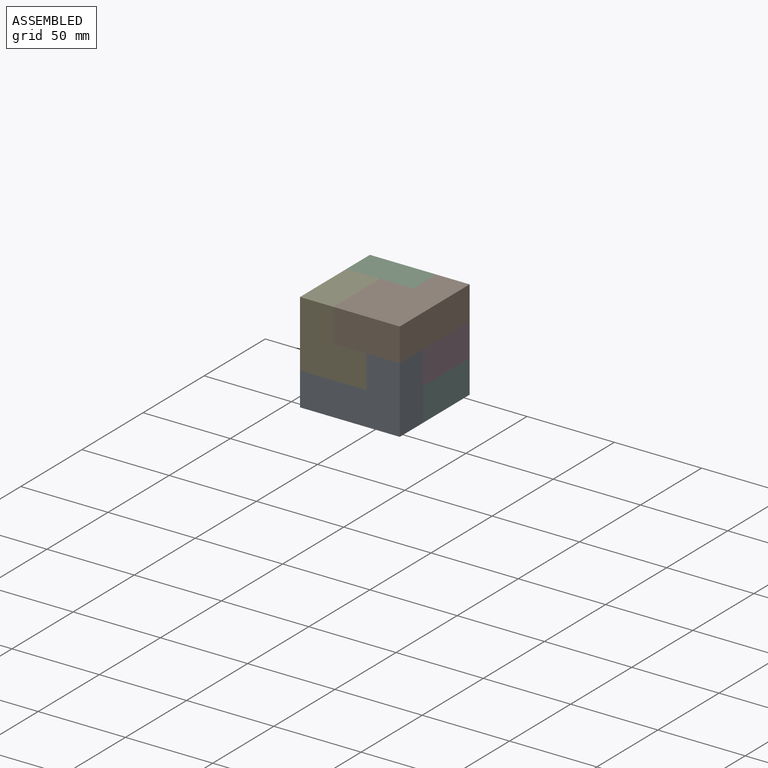
[diagram: assembled view]
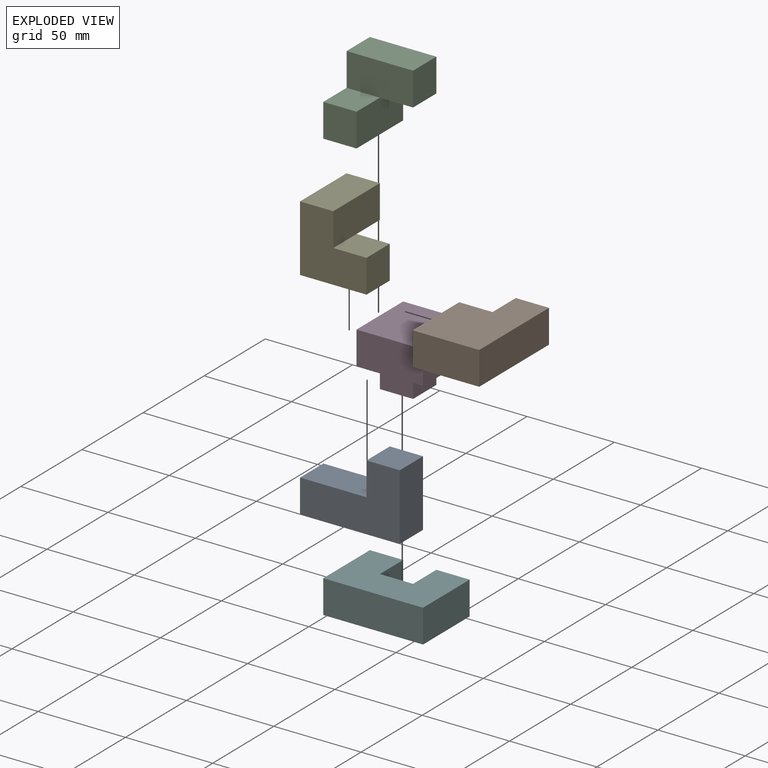
[diagram: exploded view]
GUIDED TOUR — MATED ASSEMBLY (Onshape document 09b985753b703ec9031e6366, AutoMate assembly 09b985753b703ec9031e6366_a07d5b4683fd4e2ea0722e50_ac86acaffb4ff11d9ad08a5e_default)

This assembly has 6 components, labeled P0..P5 below (a component is one placed occurrence of a part; the same part can appear more than once), held together by 18 mates. A mate is a constraint between two components; its type names the relative motion it leaves free:
  PLANAR — leaves sliding in the plane through the listed point (normal = the listed direction) and rotation about that normal free.
Axis/direction vectors are unit vectors and 'through' points are millimeter coordinates, both in the assembly's world frame.

MATES
  1. PLANAR "Planar 21": P3 <-> P1, direction (0.000, 1.000, 0.000) through (34.92, 0.00, 22.23) mm
  2. PLANAR "Planar 18": P4 <-> P0, direction (0.000, -1.000, 0.000) through (15.88, -57.15, 34.93) mm
  3. PLANAR "Planar 6": P5 <-> P3, direction (0.000, 0.000, 1.000) through (57.15, -19.05, 19.05) mm
  4. PLANAR "Planar 16": P4 <-> P2, direction (-1.000, 0.000, 0.000) through (0.00, -41.27, 41.28) mm
  5. PLANAR "Planar 19": P1 <-> P4, direction (0.000, 0.000, 1.000) through (40.00, -32.38, 57.15) mm
  6. PLANAR "Planar 15": P2 <-> P3, direction (0.000, 0.000, 1.000) through (9.53, -28.58, 38.10) mm
  7. PLANAR "Planar 1": P0 <-> P5, direction (1.000, 0.000, 0.000) through (57.15, -47.62, 19.05) mm
  8. PLANAR "Planar 4": P0 <-> P5, direction (0.000, 1.000, 0.000) through (0.00, -38.10, 9.53) mm
  9. PLANAR "Planar 7": P3 <-> P5, direction (0.000, 0.000, -1.000) through (41.27, -22.22, 19.05) mm
  10. PLANAR "Planar 9": P3 <-> P5, direction (1.000, 0.000, 0.000) through (57.15, -19.05, 28.58) mm
  11. PLANAR "Planar 10": P2 <-> P5, direction (-1.000, 0.000, 0.000) through (0.00, -15.88, 34.92) mm
  12. PLANAR "Planar 12": P3 <-> P2, direction (0.000, -1.000, 0.000) through (19.05, -38.10, 28.58) mm
  13. PLANAR "Planar 17": P2 <-> P4, direction (0.000, 0.000, 1.000) through (19.05, -9.53, 57.15) mm
  14. PLANAR "Planar 11": P2 <-> P5, direction (0.000, 1.000, 0.000) through (0.00, 0.00, 38.10) mm
  15. PLANAR "Planar 20": P1 <-> P0, direction (1.000, 0.000, 0.000) through (57.15, -28.57, 47.63) mm
  16. PLANAR "Planar 14": P2 <-> P3, direction (0.000, -1.000, 0.000) through (9.53, -38.10, 28.57) mm
  17. PLANAR "Planar 3": P5 <-> P0, direction (0.000, 0.000, 1.000) through (28.57, -20.96, 19.05) mm
  18. PLANAR "Planar 5": P3 <-> P0, direction (0.000, -1.000, 0.000) through (38.10, -38.10, 28.58) mm

ASSEMBLY ORDER
  1. P3 — the base component [order heuristic]
  2. P0 — core [order heuristic]
  3. P5 — core [order heuristic]
  4. P4 — core [order heuristic]
  5. P2 — core [order heuristic]
  6. P1 [order verified]
Order-tag legend:
  [order verified] — this step's position reverses a verified removal order: the component was checked to insert without passing through the ones already placed.
  [order heuristic] — the first 5 components form the assembly's core: parts whose collision-free extraction could not be verified, listed in mate-graph order.

Of the 6 components, 6 carry the full construction recipe — the FeatureScript program that regenerates the part's solid from scratch; the rest are supplied as boundary geometry only.
Each toured component is shown spotlighted twice — in the assembled view, then in the exploded view, where a leader line traces a displaced component back to its assembled socket (saturated green if recipe-attached, orange if geometry-only; every other component desaturated gray) — followed by its recipe or geometry summary and the mates that hold it.
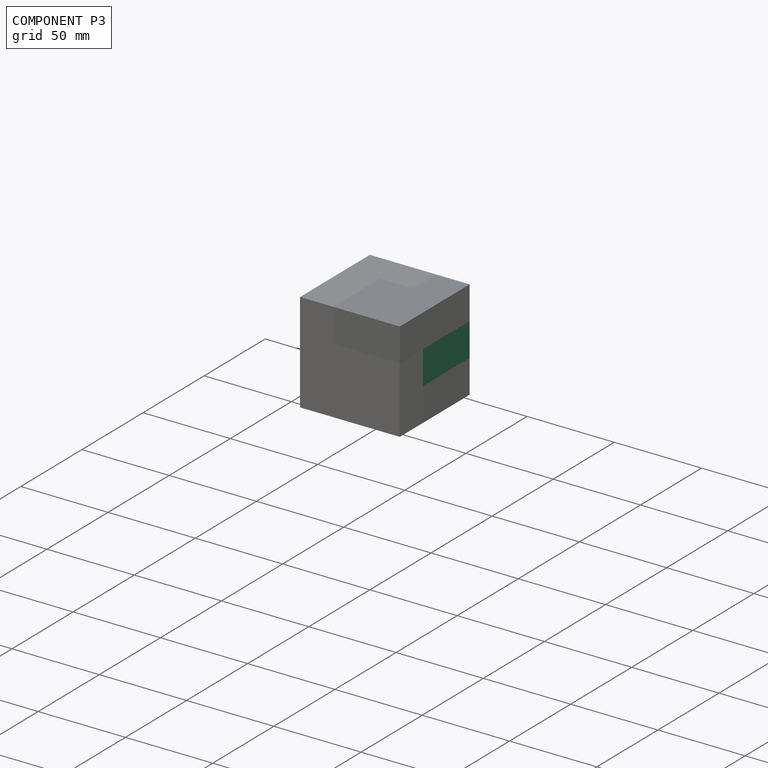
[diagram: component P3 — assembled]
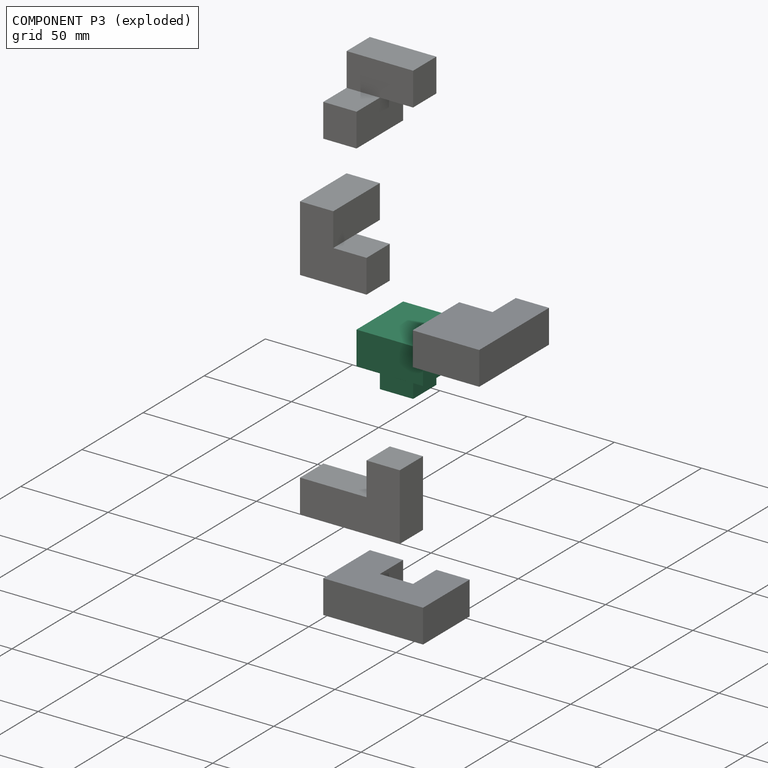
[diagram: component P3 — exploded]
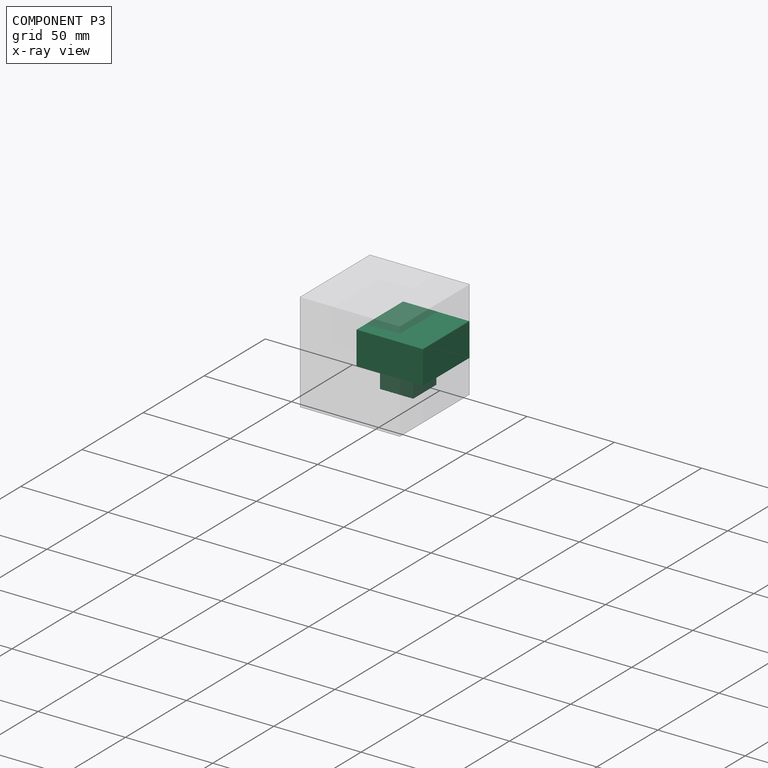
[diagram: component P3 — x-ray view]
COMPONENT P3 — recipe-attached (CADFS 00860689, mesh-verified: the recipe's output STEP matches this component's geometry to below the mesh-comparison resolution (tessellation chordal tolerance ~0.099 mm)).
Held by: PLANAR mate "Planar 21" to P1; PLANAR mate "Planar 6" to P5; PLANAR mate "Planar 15" to P2; PLANAR mate "Planar 7" to P5; PLANAR mate "Planar 9" to P5; PLANAR mate "Planar 12" to P2; PLANAR mate "Planar 14" to P2; PLANAR mate "Planar 5" to P0.
Construction recipe (FeatureScript — the CAD program that rebuilds this solid; sketch coordinates are in the units given by the * unit suffixes, e.g. mm):

FeatureScript 1511;
import(path : "onshape/std/geometry.fs", version : "1511.0");
import(path : "onshape/std/common.fs", version : "1511.0");
const mm = millimeter;
const VERTEX = EntityType.VERTEX;
const EDGE = EntityType.EDGE;
const FACE = EntityType.FACE;
const BODY = EntityType.BODY;
function v(x, y){return vector(x, y);}
function OD(order){return orderDisambiguation(order);}
function OSD(set){return originalSetDisambiguation(set);}
function TD(topology){return topologyDisambiguation(topology);}
function TDD(query){return trueDependencyDisambiguation(query);}
function sQuery(a, b, c) {return sketchEntityQuery(a, b, c);}

annotation { "Feature Type Name" : "Feature", "Feature Type Description" : "" }
export const myFeature = defineFeature(function(context is Context, id is Id, definition is map)
    precondition{}
    {
        {
            var Q0;
            Q0=qCreatedBy(makeId("Top.planeOp"),FACE);
            var sketch = newSketch(context, id + "F0", { "sketchPlane" : qUnion([Q0])});
            skLineSegment(sketch, "E0", {"start": v(0, 0) * mm, "end": v(0, 38.1) * mm});
            skLineSegment(sketch, "E1", {"start": v(0, 38.1) * mm, "end": v(38.1, 38.1) * mm});
            skLineSegment(sketch, "E2", {"start": v(38.1, 38.1) * mm, "end": v(38.1, 0) * mm});
            skLineSegment(sketch, "E3", {"start": v(38.1, 0) * mm, "end": v(0, 0) * mm});
            skSolve(sketch);
        }
        {
            var Q0;
            Q0 = qSketchRegion(id + "F0", true);
            extrude(context, id + "F1", {"entities" : qUnion([Q0]), "depth" : 19.05 * mm, "offsetDistance" : 25.4 * mm});
        }
        {
            var Q0;
            Q0=makeQuery(id+"F1.opExtrude","CAP_FACE",FACE,{"disambiguationData":[OSD([sQuery(id+"F0.wireOp",EDGE,"E0"),sQuery(id+"F0.wireOp",EDGE,"E1"),sQuery(id+"F0.wireOp",EDGE,"E2"),sQuery(id+"F0.wireOp",EDGE,"E3")])],"isStart":false});
            var sketch = newSketch(context, id + "F2", { "sketchPlane" : qUnion([Q0])});
            skLineSegment(sketch, "E4", {"start": v(0, 38.1) * mm, "end": v(19.05, 38.1) * mm});
            skLineSegment(sketch, "E5", {"start": v(19.05, 38.1) * mm, "end": v(19.05, 19.05) * mm});
            skLineSegment(sketch, "E6", {"start": v(19.05, 19.05) * mm, "end": v(0, 19.05) * mm});
            skLineSegment(sketch, "E7", {"start": v(0, 19.05) * mm, "end": v(0, 38.1) * mm});
            skSolve(sketch);
        }
        {
            var Q0;
            Q0=makeQuery(id+"F2.imprint","IMPRINT",FACE,{"disambiguationData":[TD([[makeQuery(id+"F2.imprint","IMPRINT",EDGE,{"derivedFrom":sQuery(id+"F2.wireOp",EDGE,"E4")}),-1.0]])]});
            extrude(context, id + "F3", {"entities" : qUnion([Q0]), "operationType" : NewBodyOperationType.ADD, "depth" : 19.05 * mm, "offsetDistance" : 25.4 * mm});
        }
    });
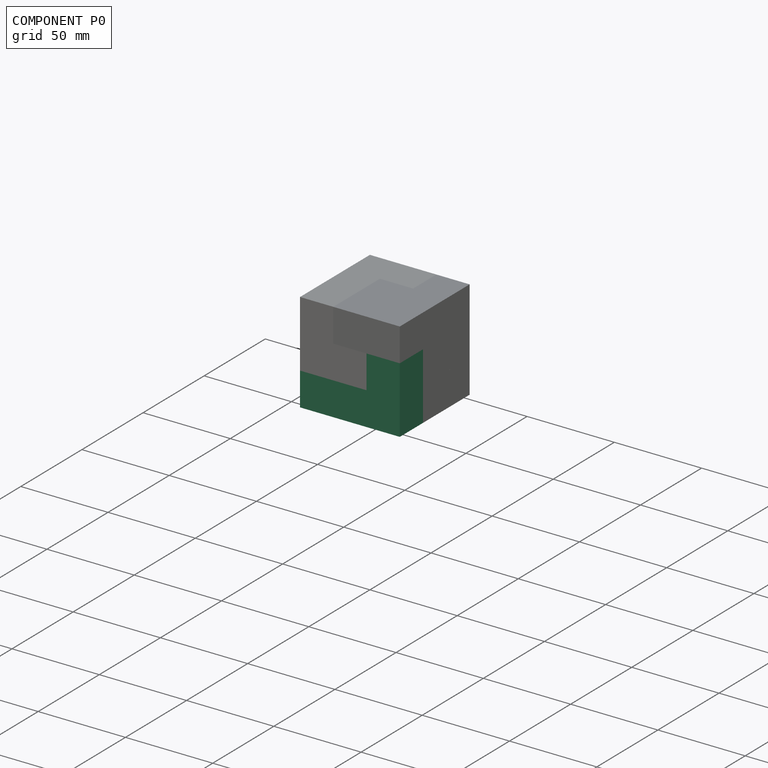
[diagram: component P0 — assembled]
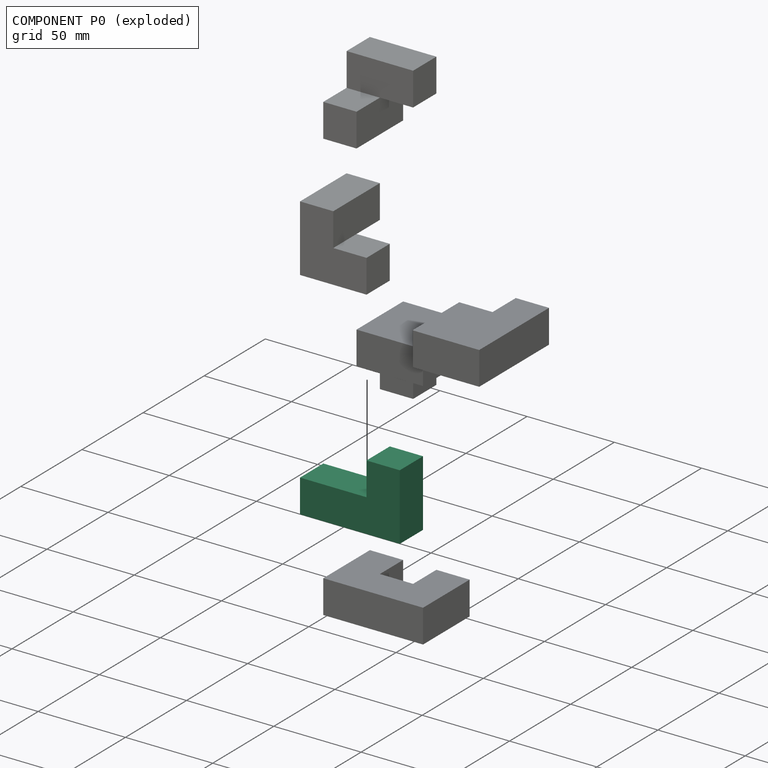
[diagram: component P0 — exploded]
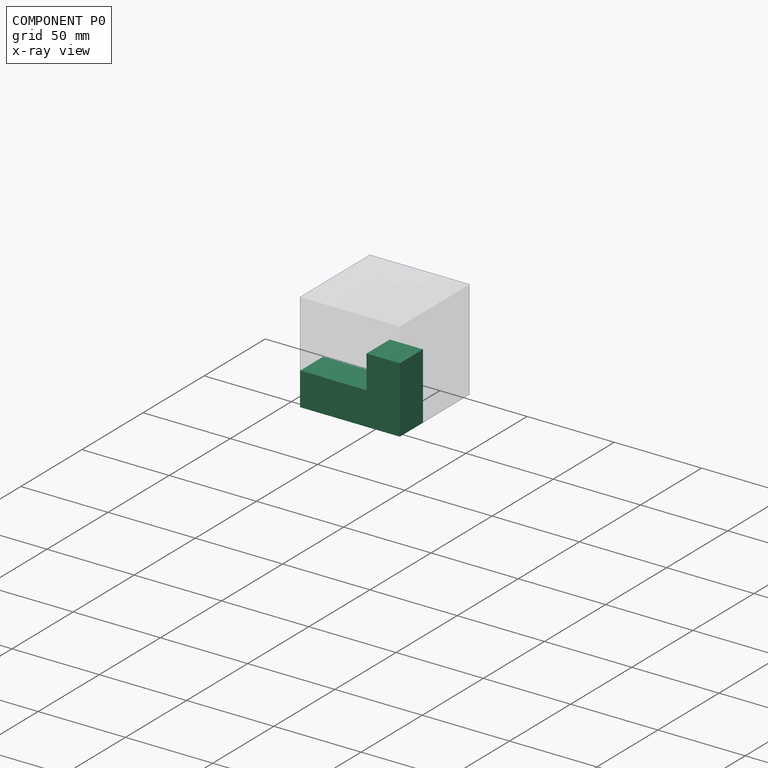
[diagram: component P0 — x-ray view]
COMPONENT P0 — recipe-attached (CADFS 00860687, mesh-verified: the recipe's output STEP matches this component's geometry to below the mesh-comparison resolution (tessellation chordal tolerance ~0.107 mm)).
Held by: PLANAR mate "Planar 18" to P4; PLANAR mate "Planar 1" to P5; PLANAR mate "Planar 4" to P5; PLANAR mate "Planar 20" to P1; PLANAR mate "Planar 3" to P5; PLANAR mate "Planar 5" to P3.
Construction recipe (FeatureScript — the CAD program that rebuilds this solid; sketch coordinates are in the units given by the * unit suffixes, e.g. mm):

FeatureScript 1511;
import(path : "onshape/std/geometry.fs", version : "1511.0");
import(path : "onshape/std/common.fs", version : "1511.0");
const mm = millimeter;
const VERTEX = EntityType.VERTEX;
const EDGE = EntityType.EDGE;
const FACE = EntityType.FACE;
const BODY = EntityType.BODY;
function v(x, y){return vector(x, y);}
function OD(order){return orderDisambiguation(order);}
function OSD(set){return originalSetDisambiguation(set);}
function TD(topology){return topologyDisambiguation(topology);}
function TDD(query){return trueDependencyDisambiguation(query);}
function sQuery(a, b, c) {return sketchEntityQuery(a, b, c);}

annotation { "Feature Type Name" : "Feature", "Feature Type Description" : "" }
export const myFeature = defineFeature(function(context is Context, id is Id, definition is map)
    precondition{}
    {
        {
            var Q0;
            Q0=qCreatedBy(makeId("Top.planeOp"),FACE);
            var sketch = newSketch(context, id + "F0", { "sketchPlane" : qUnion([Q0])});
            skLineSegment(sketch, "E0", {"start": v(0, 0) * mm, "end": v(0, 38.1) * mm});
            skLineSegment(sketch, "E1", {"start": v(0, 38.1) * mm, "end": v(19.05, 38.1) * mm});
            skLineSegment(sketch, "E2", {"start": v(19.05, 38.1) * mm, "end": v(19.05, 19.05) * mm});
            skLineSegment(sketch, "E3", {"start": v(19.05, 19.05) * mm, "end": v(57.15, 19.05) * mm});
            skLineSegment(sketch, "E4", {"start": v(57.15, 19.05) * mm, "end": v(57.15, 0) * mm});
            skLineSegment(sketch, "E5", {"start": v(0, 0) * mm, "end": v(57.15, 0) * mm});
            skSolve(sketch);
        }
        {
            var Q0;
            Q0 = qSketchRegion(id + "F0", true);
            extrude(context, id + "F1", {"entities" : qUnion([Q0]), "depth" : 19.05 * mm, "offsetDistance" : 25.4 * mm});
        }
    });
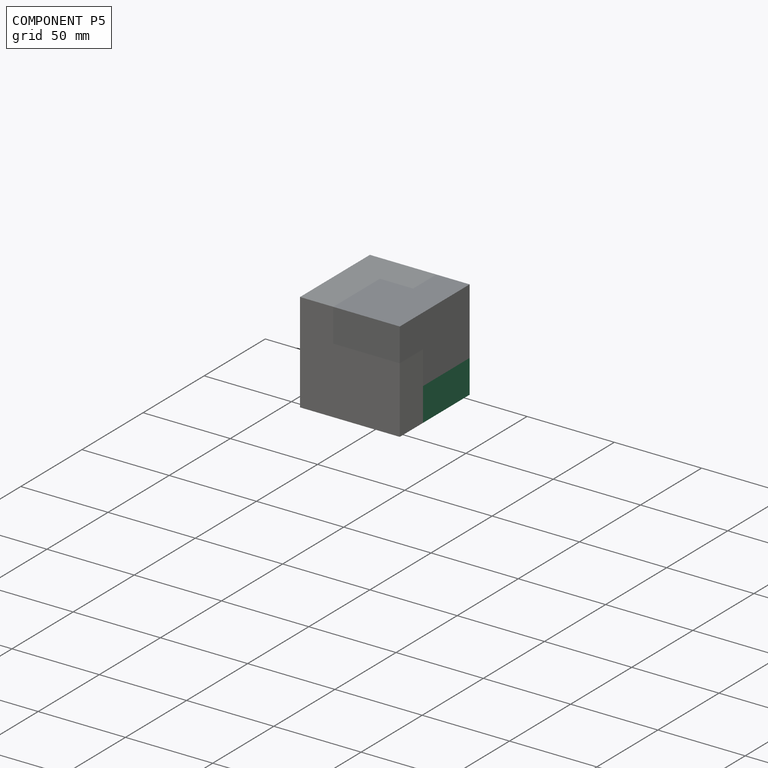
[diagram: component P5 — assembled]
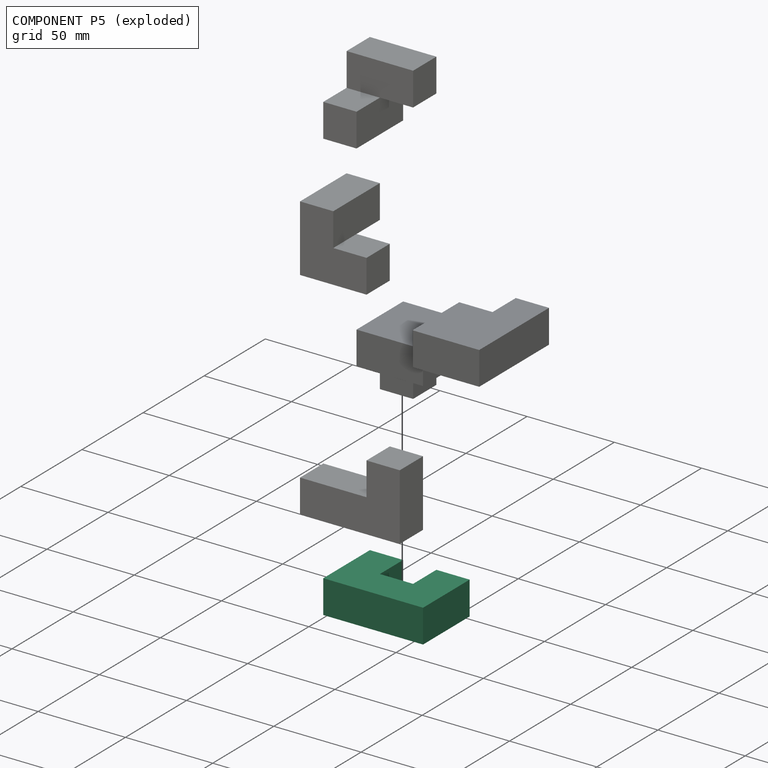
[diagram: component P5 — exploded]
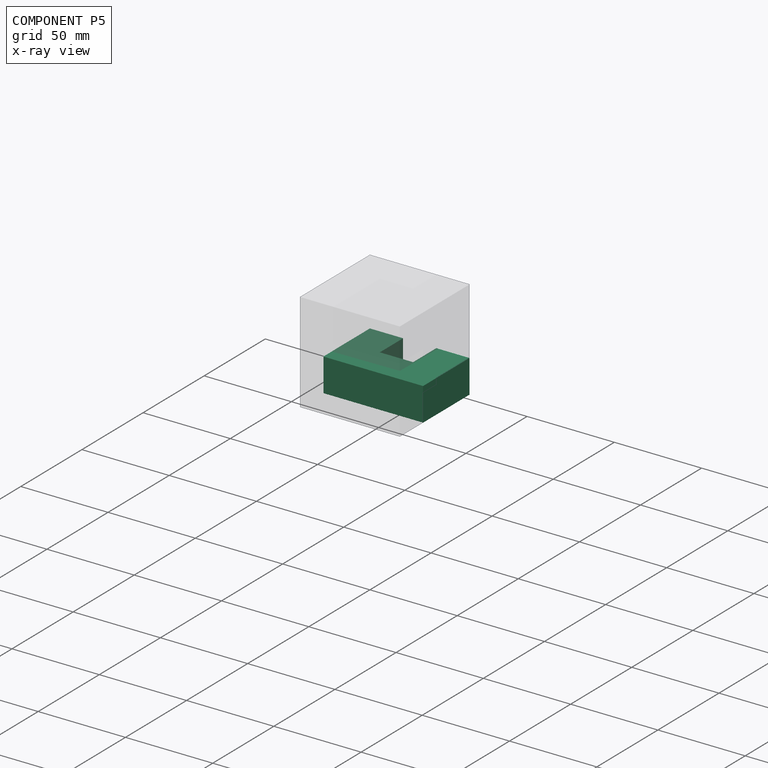
[diagram: component P5 — x-ray view]
COMPONENT P5 — recipe-attached (CADFS 00860688, mesh-verified: the recipe's output STEP matches this component's geometry to below the mesh-comparison resolution (tessellation chordal tolerance ~0.107 mm)).
Held by: PLANAR mate "Planar 6" to P3; PLANAR mate "Planar 1" to P0; PLANAR mate "Planar 4" to P0; PLANAR mate "Planar 7" to P3; PLANAR mate "Planar 9" to P3; PLANAR mate "Planar 10" to P2; PLANAR mate "Planar 11" to P2; PLANAR mate "Planar 3" to P0.
Construction recipe (FeatureScript — the CAD program that rebuilds this solid; sketch coordinates are in the units given by the * unit suffixes, e.g. mm):

FeatureScript 1511;
import(path : "onshape/std/geometry.fs", version : "1511.0");
import(path : "onshape/std/common.fs", version : "1511.0");
const mm = millimeter;
const VERTEX = EntityType.VERTEX;
const EDGE = EntityType.EDGE;
const FACE = EntityType.FACE;
const BODY = EntityType.BODY;
function v(x, y){return vector(x, y);}
function OD(order){return orderDisambiguation(order);}
function OSD(set){return originalSetDisambiguation(set);}
function TD(topology){return topologyDisambiguation(topology);}
function TDD(query){return trueDependencyDisambiguation(query);}
function sQuery(a, b, c) {return sketchEntityQuery(a, b, c);}

annotation { "Feature Type Name" : "Feature", "Feature Type Description" : "" }
export const myFeature = defineFeature(function(context is Context, id is Id, definition is map)
    precondition{}
    {
        {
            var Q0;
            Q0=qCreatedBy(makeId("Top.planeOp"),FACE);
            var sketch = newSketch(context, id + "F0", { "sketchPlane" : qUnion([Q0])});
            skLineSegment(sketch, "E0", {"start": v(0, 0) * mm, "end": v(0, -38.1) * mm});
            skLineSegment(sketch, "E1", {"start": v(0, -38.1) * mm, "end": v(57.15, -38.1) * mm});
            skLineSegment(sketch, "E2", {"start": v(57.15, -38.1) * mm, "end": v(57.15, 0) * mm});
            skLineSegment(sketch, "E3", {"start": v(57.15, 0) * mm, "end": v(38.1, 0) * mm});
            skLineSegment(sketch, "E4", {"start": v(38.1, 0) * mm, "end": v(38.1, -19.05) * mm});
            skLineSegment(sketch, "E5", {"start": v(38.1, -19.05) * mm, "end": v(19.05, -19.05) * mm});
            skLineSegment(sketch, "E6", {"start": v(19.05, -19.05) * mm, "end": v(19.05, 0) * mm});
            skLineSegment(sketch, "E7", {"start": v(19.05, 0) * mm, "end": v(0, 0) * mm});
            skSolve(sketch);
        }
        {
            var Q0;
            Q0 = qSketchRegion(id + "F0", true);
            extrude(context, id + "F1", {"entities" : qUnion([Q0]), "depth" : 19.05 * mm, "offsetDistance" : 25.4 * mm});
        }
    });
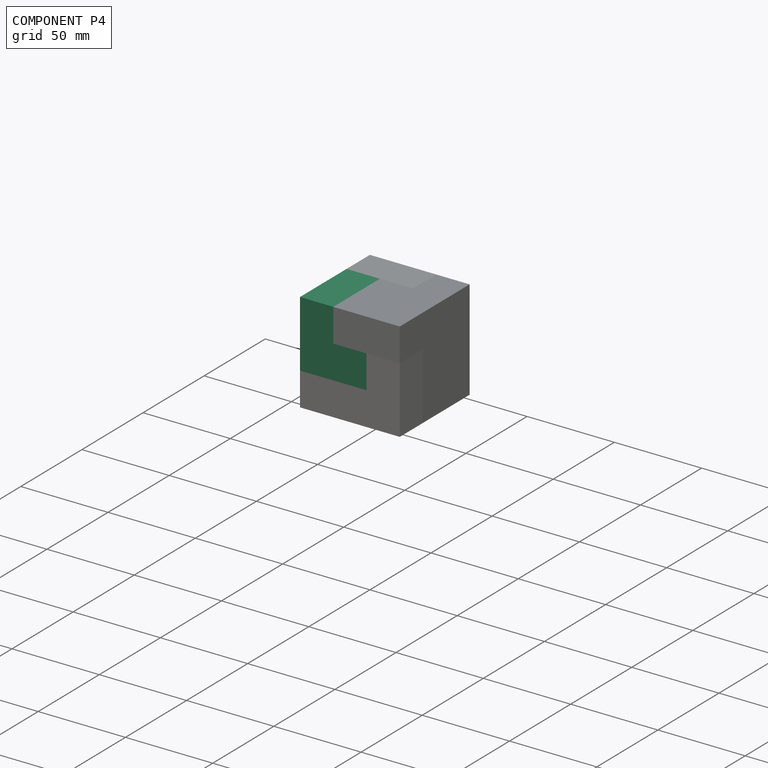
[diagram: component P4 — assembled]
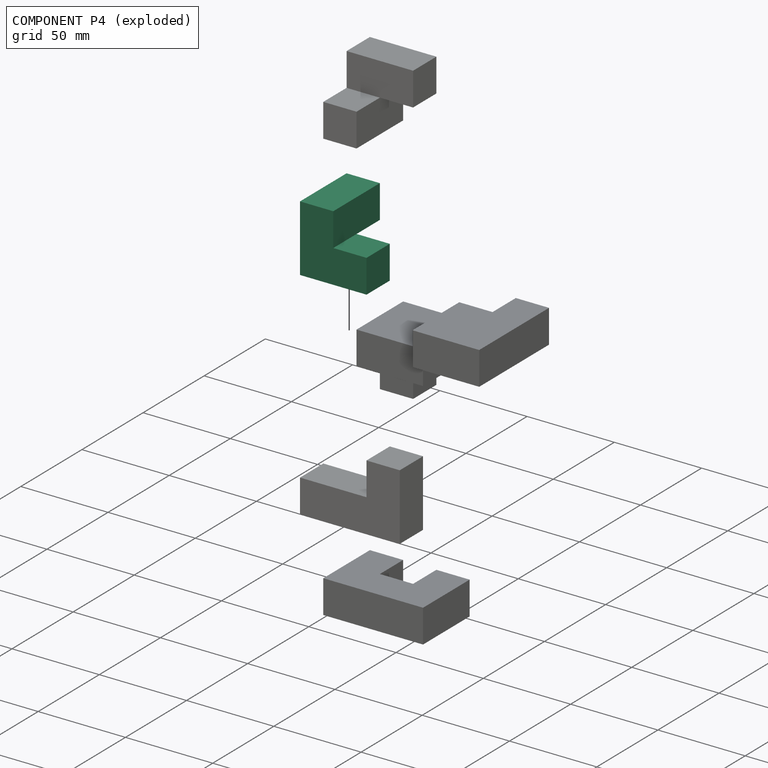
[diagram: component P4 — exploded]
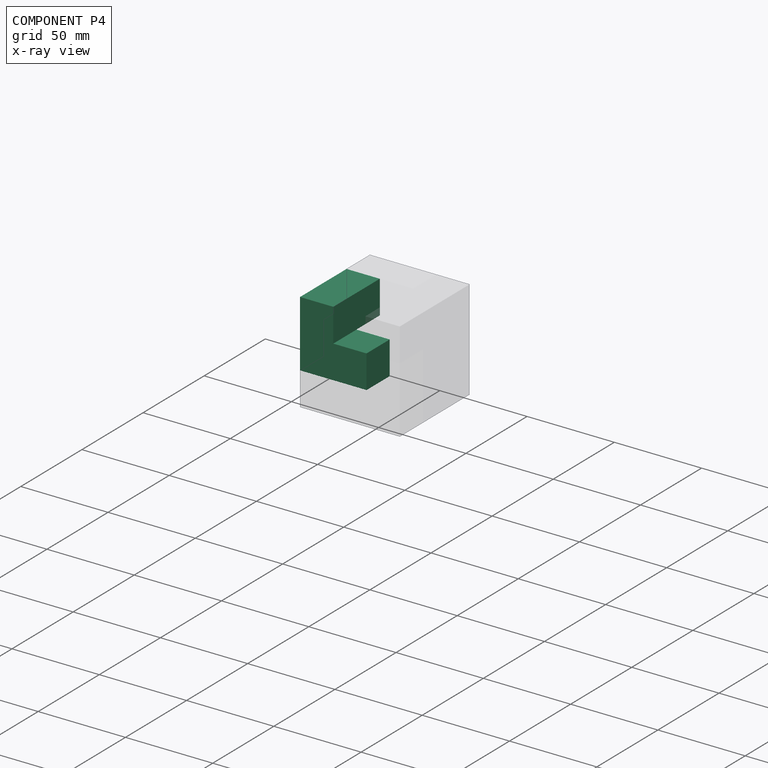
[diagram: component P4 — x-ray view]
COMPONENT P4 — same part as P2 (CADFS 00860690); its construction recipe is shown at P2.
Held by: PLANAR mate "Planar 18" to P0; PLANAR mate "Planar 16" to P2; PLANAR mate "Planar 19" to P1; PLANAR mate "Planar 17" to P2.
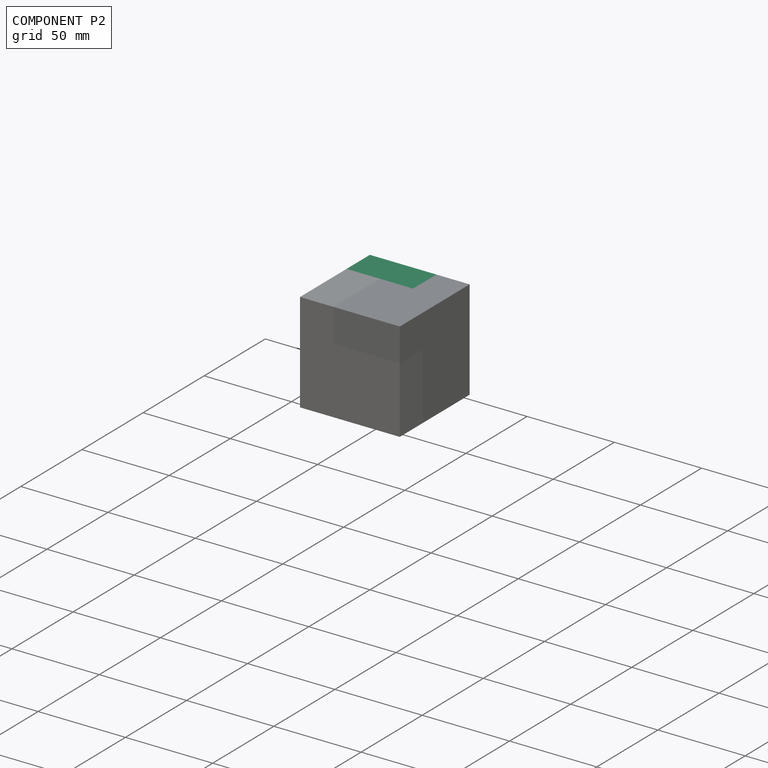
[diagram: component P2 — assembled]
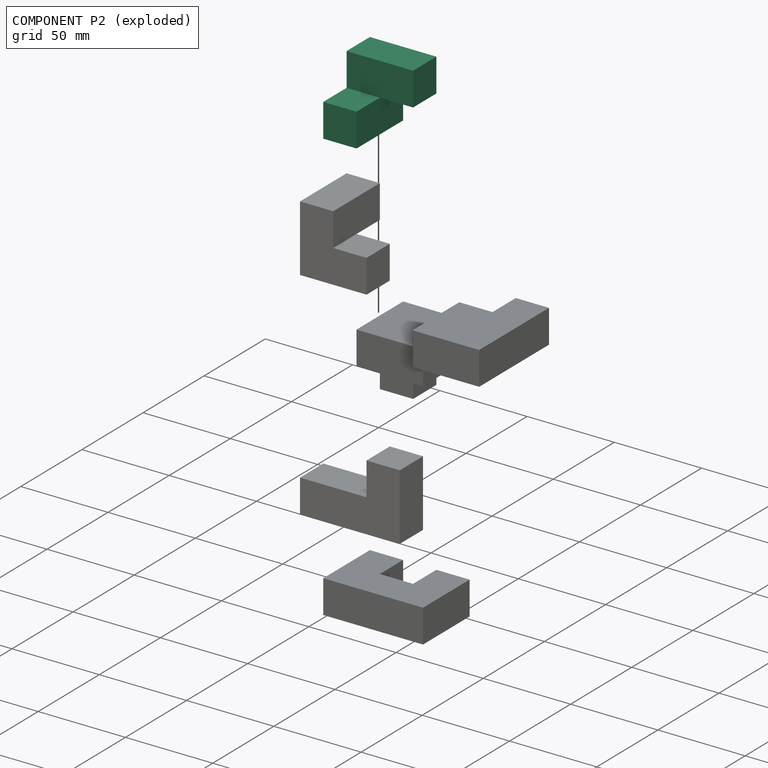
[diagram: component P2 — exploded]
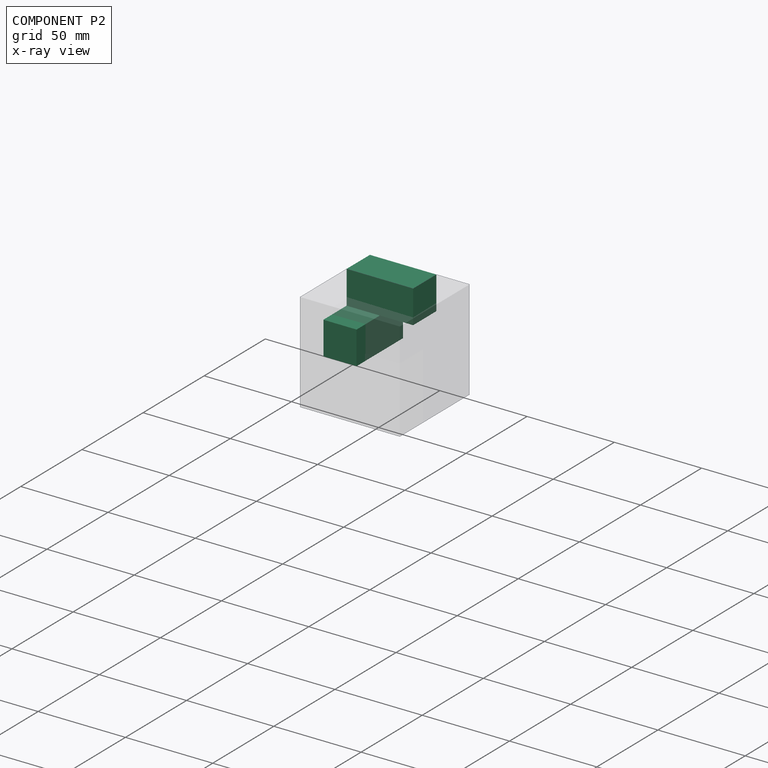
[diagram: component P2 — x-ray view]
COMPONENT P2 — recipe-attached (CADFS 00860690, mesh-verified: the recipe's output STEP matches this component's geometry to below the mesh-comparison resolution (tessellation chordal tolerance ~0.099 mm)).
Held by: PLANAR mate "Planar 16" to P4; PLANAR mate "Planar 15" to P3; PLANAR mate "Planar 10" to P5; PLANAR mate "Planar 12" to P3; PLANAR mate "Planar 17" to P4; PLANAR mate "Planar 11" to P5; PLANAR mate "Planar 14" to P3.
Construction recipe (FeatureScript — the CAD program that rebuilds this solid; sketch coordinates are in the units given by the * unit suffixes, e.g. mm):

FeatureScript 1511;
import(path : "onshape/std/geometry.fs", version : "1511.0");
import(path : "onshape/std/common.fs", version : "1511.0");
const mm = millimeter;
const VERTEX = EntityType.VERTEX;
const EDGE = EntityType.EDGE;
const FACE = EntityType.FACE;
const BODY = EntityType.BODY;
function v(x, y){return vector(x, y);}
function OD(order){return orderDisambiguation(order);}
function OSD(set){return originalSetDisambiguation(set);}
function TD(topology){return topologyDisambiguation(topology);}
function TDD(query){return trueDependencyDisambiguation(query);}
function sQuery(a, b, c) {return sketchEntityQuery(a, b, c);}

annotation { "Feature Type Name" : "Feature", "Feature Type Description" : "" }
export const myFeature = defineFeature(function(context is Context, id is Id, definition is map)
    precondition{}
    {
        {
            var Q0;
            Q0=qCreatedBy(makeId("Top.planeOp"),FACE);
            var sketch = newSketch(context, id + "F0", { "sketchPlane" : qUnion([Q0])});
            skLineSegment(sketch, "E0", {"start": v(0, 0) * mm, "end": v(0, 19.05) * mm});
            skLineSegment(sketch, "E1", {"start": v(0, 19.05) * mm, "end": v(38.1, 19.05) * mm});
            skLineSegment(sketch, "E2", {"start": v(38.1, 19.05) * mm, "end": v(38.1, -19.05) * mm});
            skLineSegment(sketch, "E3", {"start": v(38.1, -19.05) * mm, "end": v(19.05, -19.05) * mm});
            skLineSegment(sketch, "E4", {"start": v(19.05, -19.05) * mm, "end": v(19.05, 0) * mm});
            skLineSegment(sketch, "E5", {"start": v(19.05, 0) * mm, "end": v(0, 0) * mm});
            skSolve(sketch);
        }
        {
            var Q0;
            Q0 = qSketchRegion(id + "F0", true);
            extrude(context, id + "F1", {"entities" : qUnion([Q0]), "depth" : 19.05 * mm, "offsetDistance" : 25.4 * mm});
        }
        {
            var Q0;
            Q0=makeQuery(id+"F1.opExtrude","CAP_FACE",FACE,{"disambiguationData":[OSD([sQuery(id+"F0.wireOp",EDGE,"E0"),sQuery(id+"F0.wireOp",EDGE,"E1"),sQuery(id+"F0.wireOp",EDGE,"E2"),sQuery(id+"F0.wireOp",EDGE,"E3"),sQuery(id+"F0.wireOp",EDGE,"E4"),sQuery(id+"F0.wireOp",EDGE,"E5")])],"isStart":false});
            var sketch = newSketch(context, id + "F2", { "sketchPlane" : qUnion([Q0])});
            skLineSegment(sketch, "E6", {"start": v(19.05, 0) * mm, "end": v(19.05, 19.05) * mm});
            skLineSegment(sketch, "E7", {"start": v(19.05, 19.05) * mm, "end": v(0, 19.05) * mm});
            skLineSegment(sketch, "E8", {"start": v(0, 19.05) * mm, "end": v(0, 0) * mm});
            skLineSegment(sketch, "E9", {"start": v(0, 0) * mm, "end": v(19.05, 0) * mm});
            skSolve(sketch);
        }
        {
            var Q0;
            Q0 = qSketchRegion(id + "F2", true);
            extrude(context, id + "F3", {"entities" : qUnion([Q0]), "operationType" : NewBodyOperationType.ADD, "depth" : 19.05 * mm, "offsetDistance" : 25.4 * mm});
        }
    });
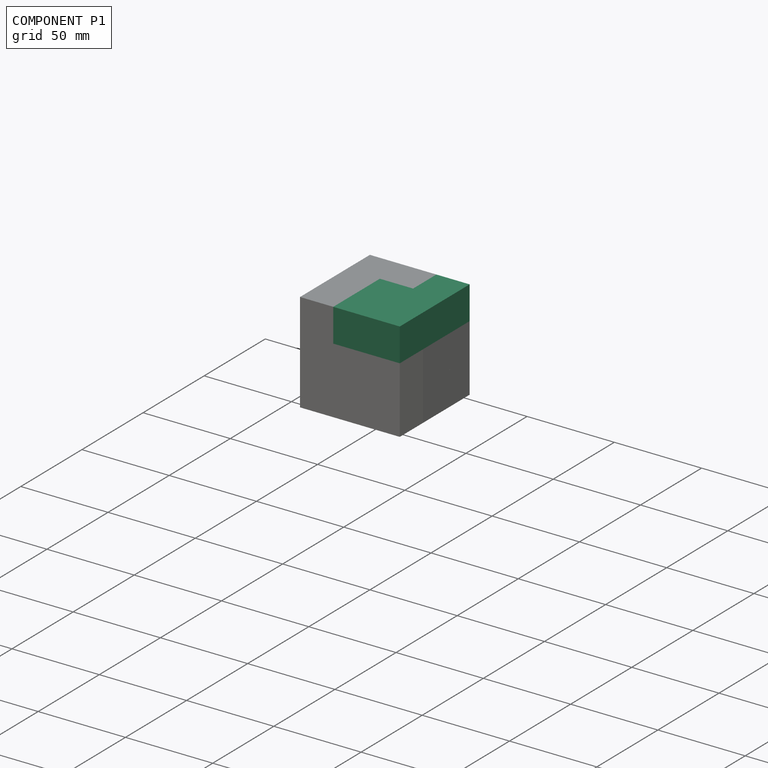
[diagram: component P1 — assembled]
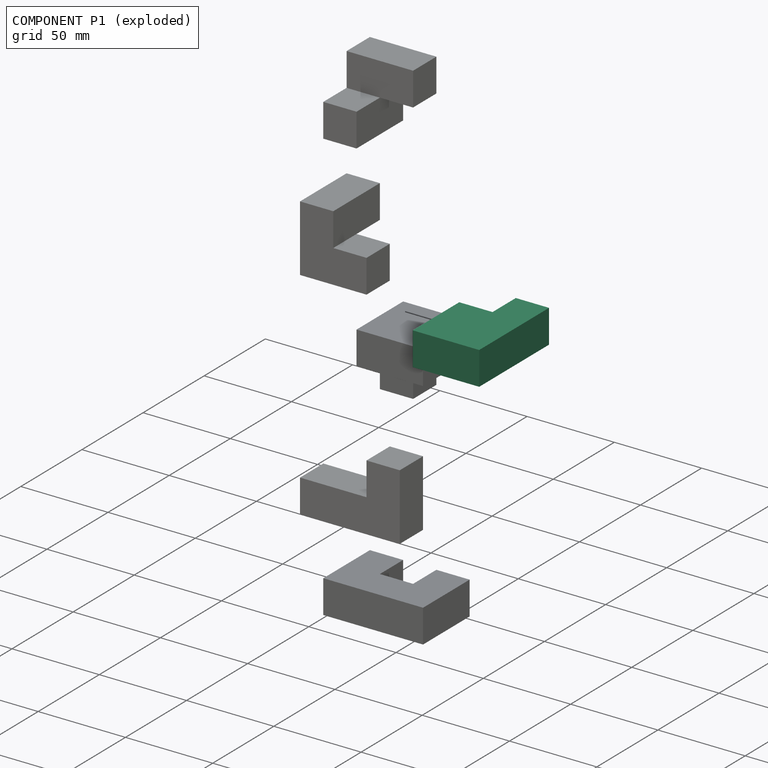
[diagram: component P1 — exploded]
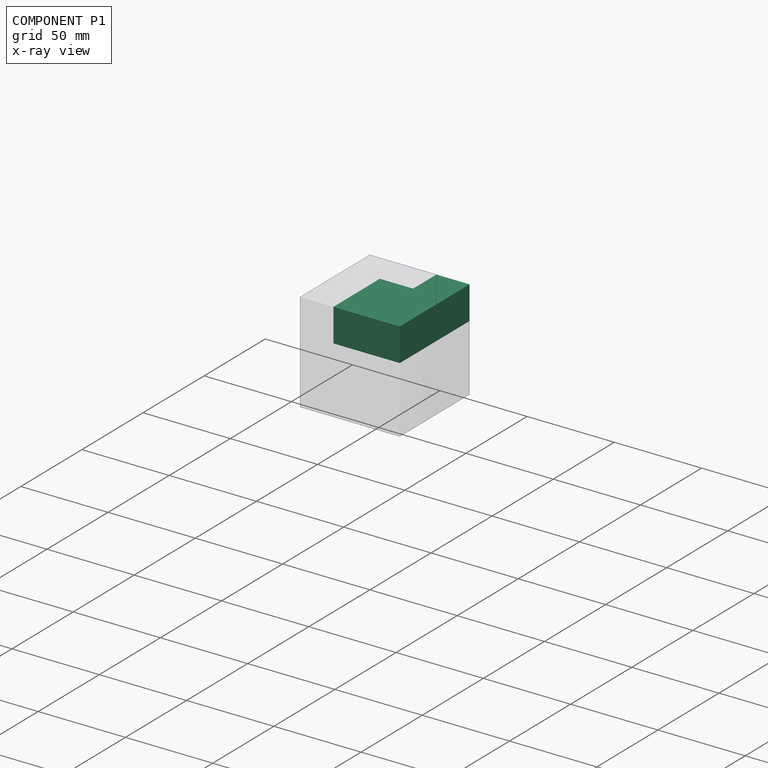
[diagram: component P1 — x-ray view]
COMPONENT P1 — recipe-attached (CADFS 00860692, mesh-verified: the recipe's output STEP matches this component's geometry to below the mesh-comparison resolution (tessellation chordal tolerance ~0.107 mm)).
Held by: PLANAR mate "Planar 21" to P3; PLANAR mate "Planar 19" to P4; PLANAR mate "Planar 20" to P0.
Construction recipe (FeatureScript — the CAD program that rebuilds this solid; sketch coordinates are in the units given by the * unit suffixes, e.g. mm):

FeatureScript 1511;
import(path : "onshape/std/geometry.fs", version : "1511.0");
import(path : "onshape/std/common.fs", version : "1511.0");
const mm = millimeter;
const VERTEX = EntityType.VERTEX;
const EDGE = EntityType.EDGE;
const FACE = EntityType.FACE;
const BODY = EntityType.BODY;
function v(x, y){return vector(x, y);}
function OD(order){return orderDisambiguation(order);}
function OSD(set){return originalSetDisambiguation(set);}
function TD(topology){return topologyDisambiguation(topology);}
function TDD(query){return trueDependencyDisambiguation(query);}
function sQuery(a, b, c) {return sketchEntityQuery(a, b, c);}

annotation { "Feature Type Name" : "Feature", "Feature Type Description" : "" }
export const myFeature = defineFeature(function(context is Context, id is Id, definition is map)
    precondition{}
    {
        {
            var Q0;
            Q0=qCreatedBy(makeId("Top.planeOp"),FACE);
            var sketch = newSketch(context, id + "F0", { "sketchPlane" : qUnion([Q0])});
            skLineSegment(sketch, "E0", {"start": v(0, 0) * mm, "end": v(0, -38.1) * mm});
            skLineSegment(sketch, "E1", {"start": v(0, -38.1) * mm, "end": v(57.15, -38.1) * mm});
            skLineSegment(sketch, "E2", {"start": v(57.15, -38.1) * mm, "end": v(57.15, -19.05) * mm});
            skLineSegment(sketch, "E3", {"start": v(57.15, -19.05) * mm, "end": v(38.1, -19.05) * mm});
            skLineSegment(sketch, "E4", {"start": v(38.1, -19.05) * mm, "end": v(38.1, 0) * mm});
            skLineSegment(sketch, "E5", {"start": v(38.1, 0) * mm, "end": v(0, 0) * mm});
            skSolve(sketch);
        }
        {
            var Q0;
            Q0 = qSketchRegion(id + "F0", true);
            extrude(context, id + "F1", {"entities" : qUnion([Q0]), "depth" : 19.05 * mm, "offsetDistance" : 25.4 * mm});
        }
    });
PROVENANCE & LICENSES
Assembly (occurrences, transforms, mates, per-part STEP geometry): AutoMate dataset, Zenodo record 7776208, CC0.
Construction recipes: CADFS (HuggingFace VladPyatov/CADFS, CC-BY-4.0, layered over the ABC dataset), FeatureScript reconstruction programs keyed by ABC model id.
Join: ABC meta listings map ABC model id -> Onshape documentId; within a shared document, parts are matched by geometric signature (bounding-box dims + volume at 0.1% relative tolerance, exact B-rep face/solid counts).
Verification: 6 of this assembly's 6 components carry a recipe attachment, and every attachment is mesh-verified: the CADFS STEP and the AutoMate member STEP were compared as meshes in their shared local frame (symmetric sampled-point-to-mesh distance); worst across the 6 attachments: below the mesh-comparison resolution (tessellation chordal tolerance ~0.107 mm) on a 71 mm part.
Renders: orthographic iso camera (az 35 / el 25); the floor grid conveys scale (grid pitch printed in each image; no ruler). In the exploded view each component is displaced by its stored offset vector: the offsets alone carry the explosion direction (mate normal/axis signs are not orientation cues and do not encode it), and separation distances are assigned per mate-chain, not proportionally to assembly-order depth.
